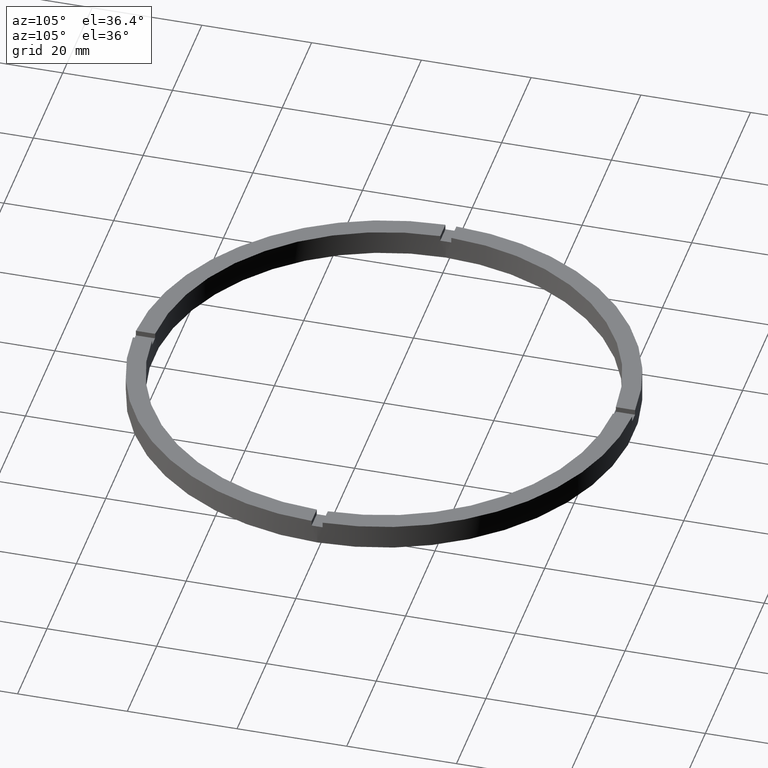
[diagram: clean part render]
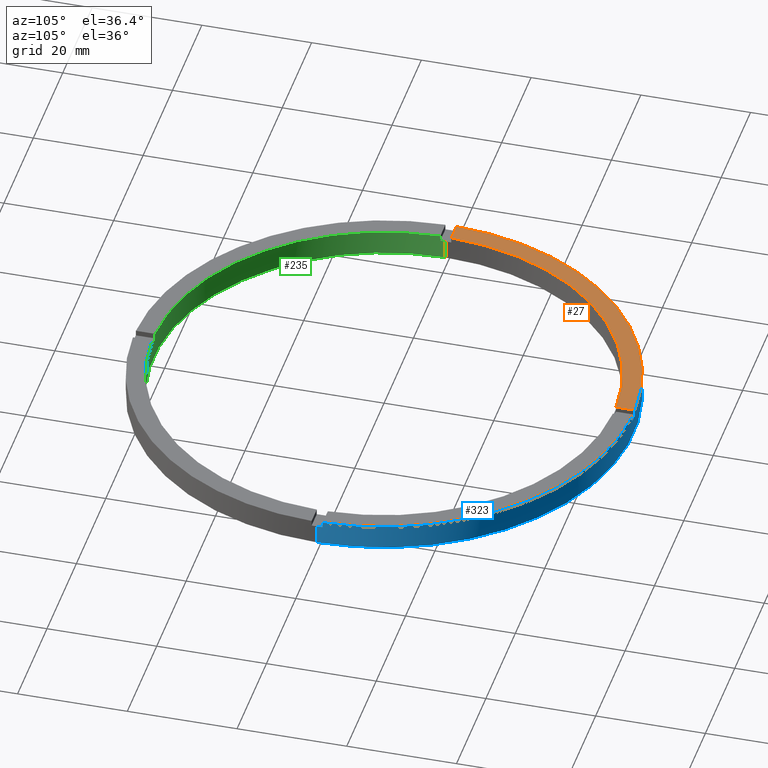
[diagram: same view with three faces highlighted in distinct colors, each labeled with its STEP entity id]
A machine part, auxiliary view with three faces highlighted in distinct colors.
Their STEP definitions:

[orange] entity #27 — the highlighted planar face has unit normal (0, 0, 1).
#16 = AXIS2_PLACEMENT_3D ( 'NONE', #625, #29, #82 ) ;
#27 = ADVANCED_FACE ( 'NONE', ( #358 ), #107, .T. ) ;
#29 = DIRECTION ( 'NONE',  ( 0.000000000000000000, 0.000000000000000000, 1.000000000000000000 ) ) ;
#66 = VERTEX_POINT ( 'NONE', #253 ) ;
#72 = EDGE_CURVE ( 'NONE', #453, #444, #346, .T. ) ;
#77 = DIRECTION ( 'NONE',  ( -1.000000000000000000, -2.168404344971008621E-16, 0.000000000000000000 ) ) ;
#82 = DIRECTION ( 'NONE',  ( 1.000000000000000000, 0.000000000000000000, 0.000000000000000000 ) ) ;
#88 = EDGE_CURVE ( 'NONE', #365, #453, #619, .T. ) ;
#107 = PLANE ( 'NONE',  #596 ) ;
#133 = ORIENTED_EDGE ( 'NONE', *, *, #576, .T. ) ;
#143 = CARTESIAN_POINT ( 'NONE',  ( -45.48900966167541782, 0.9999999999999701350, 4.500000000000000000 ) ) ;
#157 = CARTESIAN_POINT ( 'NONE',  ( 0.000000000000000000, 0.000000000000000000, 4.500000000000000000 ) ) ;
#159 = CARTESIAN_POINT ( 'NONE',  ( 0.000000000000000000, 0.000000000000000000, 4.500000000000000000 ) ) ;
#178 = VECTOR ( 'NONE', #366, 1000.000000000000000 ) ;
#183 = LINE ( 'NONE', #312, #178 ) ;
#188 = ORIENTED_EDGE ( 'NONE', *, *, #88, .F. ) ;
#253 = CARTESIAN_POINT ( 'NONE',  ( -1.000000000000026201, 45.48900966167541782, 4.500000000000000000 ) ) ;
#310 = CARTESIAN_POINT ( 'NONE',  ( -35.50000000000018474, 0.9999999999999720224, 4.500000000000000000 ) ) ;
#312 = CARTESIAN_POINT ( 'NONE',  ( -1.000000000000026201, 35.50000000000000000, 4.500000000000000000 ) ) ;
#314 = DIRECTION ( 'NONE',  ( 1.000000000000000000, 0.000000000000000000, -0.000000000000000000 ) ) ;
#334 = CARTESIAN_POINT ( 'NONE',  ( -41.98809355043403713, 0.9999999999999708011, 4.500000000000000000 ) ) ;
#346 = LINE ( 'NONE', #310, #637 ) ;
#358 = FACE_OUTER_BOUND ( 'NONE', #451, .T. ) ;
#365 = VERTEX_POINT ( 'NONE', #651 ) ;
#366 = DIRECTION ( 'NONE',  ( -0.000000000000000000, -1.000000000000000000, -0.000000000000000000 ) ) ;
#371 = ORIENTED_EDGE ( 'NONE', *, *, #541, .F. ) ;
#444 = VERTEX_POINT ( 'NONE', #143 ) ;
#451 = EDGE_LOOP ( 'NONE', ( #371, #133, #654, #188 ) ) ;
#453 = VERTEX_POINT ( 'NONE', #334 ) ;
#541 = EDGE_CURVE ( 'NONE', #66, #365, #183, .T. ) ;
#552 = DIRECTION ( 'NONE',  ( 1.000000000000000000, 0.000000000000000000, 0.000000000000000000 ) ) ;
#563 = AXIS2_PLACEMENT_3D ( 'NONE', #157, #610, #552 ) ;
#576 = EDGE_CURVE ( 'NONE', #66, #444, #714, .T. ) ;
#596 = AXIS2_PLACEMENT_3D ( 'NONE', #159, #763, #314 ) ;
#610 = DIRECTION ( 'NONE',  ( 0.000000000000000000, 0.000000000000000000, 1.000000000000000000 ) ) ;
#619 = CIRCLE ( 'NONE', #16, 42.00000000000000000 ) ;
#625 = CARTESIAN_POINT ( 'NONE',  ( 0.000000000000000000, 0.000000000000000000, 4.500000000000000000 ) ) ;
#637 = VECTOR ( 'NONE', #77, 1000.000000000000000 ) ;
#651 = CARTESIAN_POINT ( 'NONE',  ( -1.000000000000026201, 41.98809355043403713, 4.500000000000000000 ) ) ;
#654 = ORIENTED_EDGE ( 'NONE', *, *, #72, .F. ) ;
#714 = CIRCLE ( 'NONE', #563, 45.50000000000000000 ) ;
#763 = DIRECTION ( 'NONE',  ( 0.000000000000000000, 0.000000000000000000, 1.000000000000000000 ) ) ;

[blue] entity #323 — the highlighted cylindrical surface (partial cylindrical patch) has radius 45.5 mm, axis along (-0, -0, -1).
#1 = CYLINDRICAL_SURFACE ( 'NONE', #613, 45.50000000000000000 ) ;
#2 = LINE ( 'NONE', #631, #255 ) ;
#4 = LINE ( 'NONE', #275, #259 ) ;
#33 = EDGE_CURVE ( 'NONE', #454, #180, #85, .T. ) ;
#36 = EDGE_CURVE ( 'NONE', #118, #180, #359, .T. ) ;
#51 = CARTESIAN_POINT ( 'NONE',  ( 0.9999999999999737987, 45.48900966167541782, 4.500000000000000000 ) ) ;
#53 = CARTESIAN_POINT ( 'NONE',  ( 45.48900966167542492, 0.9999999999998439026, 4.500000000000000000 ) ) ;
#60 = AXIS2_PLACEMENT_3D ( 'NONE', #572, #130, #618 ) ;
#66 = VERTEX_POINT ( 'NONE', #253 ) ;
#78 = CARTESIAN_POINT ( 'NONE',  ( -45.50000000000000000, 0.000000000000000000, 0.000000000000000000 ) ) ;
#85 = LINE ( 'NONE', #569, #104 ) ;
#100 = DIRECTION ( 'NONE',  ( 1.000000000000000000, 0.000000000000000000, 0.000000000000000000 ) ) ;
#103 = EDGE_CURVE ( 'NONE', #739, #595, #638, .T. ) ;
#104 = VECTOR ( 'NONE', #247, 1000.000000000000000 ) ;
#118 = VERTEX_POINT ( 'NONE', #53 ) ;
#120 = ORIENTED_EDGE ( 'NONE', *, *, #324, .T. ) ;
#123 = ORIENTED_EDGE ( 'NONE', *, *, #603, .F. ) ;
#126 = CARTESIAN_POINT ( 'NONE',  ( -1.000000000000026201, 45.48900966167541782, 3.499999999999999556 ) ) ;
#128 = CARTESIAN_POINT ( 'NONE',  ( 45.50000000000000000, 5.572142936120457130E-15, 3.499999999999999556 ) ) ;
#130 = DIRECTION ( 'NONE',  ( 0.000000000000000000, 0.000000000000000000, 1.000000000000000000 ) ) ;
#136 = AXIS2_PLACEMENT_3D ( 'NONE', #670, #750, #409 ) ;
#143 = CARTESIAN_POINT ( 'NONE',  ( -45.48900966167541782, 0.9999999999999701350, 4.500000000000000000 ) ) ;
#157 = CARTESIAN_POINT ( 'NONE',  ( 0.000000000000000000, 0.000000000000000000, 4.500000000000000000 ) ) ;
#158 = DIRECTION ( 'NONE',  ( -0.000000000000000000, -0.000000000000000000, -1.000000000000000000 ) ) ;
#180 = VERTEX_POINT ( 'NONE', #51 ) ;
#186 = ORIENTED_EDGE ( 'NONE', *, *, #576, .F. ) ;
#202 = CARTESIAN_POINT ( 'NONE',  ( 0.000000000000000000, 0.000000000000000000, 4.500000000000000000 ) ) ;
#207 = DIRECTION ( 'NONE',  ( 1.000000000000000000, 0.000000000000000000, 0.000000000000000000 ) ) ;
#208 = VERTEX_POINT ( 'NONE', #325 ) ;
#218 = EDGE_CURVE ( 'NONE', #667, #729, #4, .T. ) ;
#227 = AXIS2_PLACEMENT_3D ( 'NONE', #281, #584, #100 ) ;
#240 = VECTOR ( 'NONE', #158, 1000.000000000000000 ) ;
#241 = CARTESIAN_POINT ( 'NONE',  ( 45.48900966167542492, 0.9999999999998439026, 3.499999999999999556 ) ) ;
#247 = DIRECTION ( 'NONE',  ( 0.000000000000000000, 0.000000000000000000, 1.000000000000000000 ) ) ;
#248 = CARTESIAN_POINT ( 'NONE',  ( -45.50000000000000000, 0.000000000000000000, 3.499999999999999556 ) ) ;
#252 = LINE ( 'NONE', #773, #772 ) ;
#253 = CARTESIAN_POINT ( 'NONE',  ( -1.000000000000026201, 45.48900966167541782, 4.500000000000000000 ) ) ;
#255 = VECTOR ( 'NONE', #279, 1000.000000000000000 ) ;
#259 = VECTOR ( 'NONE', #376, 1000.000000000000000 ) ;
#272 = CARTESIAN_POINT ( 'NONE',  ( -45.48900966167541782, 0.9999999999999701350, 4.500000000000000000 ) ) ;
#275 = CARTESIAN_POINT ( 'NONE',  ( -45.50000000000000000, 0.000000000000000000, 4.500000000000000000 ) ) ;
#279 = DIRECTION ( 'NONE',  ( -0.000000000000000000, -0.000000000000000000, -1.000000000000000000 ) ) ;
#281 = CARTESIAN_POINT ( 'NONE',  ( 0.000000000000000000, 0.000000000000000000, 3.499999999999999556 ) ) ;
#283 = EDGE_CURVE ( 'NONE', #66, #688, #776, .T. ) ;
#291 = AXIS2_PLACEMENT_3D ( 'NONE', #379, #635, #691 ) ;
#303 = CARTESIAN_POINT ( 'NONE',  ( 45.50000000000000000, 5.572142936120457130E-15, 0.000000000000000000 ) ) ;
#323 = ADVANCED_FACE ( 'NONE', ( #523 ), #1, .T. ) ;
#324 = EDGE_CURVE ( 'NONE', #208, #444, #506, .T. ) ;
#325 = CARTESIAN_POINT ( 'NONE',  ( -45.48900966167541782, 0.9999999999999701350, 3.499999999999999556 ) ) ;
#330 = DIRECTION ( 'NONE',  ( -0.000000000000000000, -0.000000000000000000, -1.000000000000000000 ) ) ;
#333 = EDGE_CURVE ( 'NONE', #454, #688, #504, .T. ) ;
#340 = EDGE_CURVE ( 'NONE', #739, #736, #252, .T. ) ;
#359 = CIRCLE ( 'NONE', #136, 45.50000000000000000 ) ;
#364 = AXIS2_PLACEMENT_3D ( 'NONE', #449, #766, #207 ) ;
#374 = ORIENTED_EDGE ( 'NONE', *, *, #333, .F. ) ;
#376 = DIRECTION ( 'NONE',  ( -0.000000000000000000, -0.000000000000000000, -1.000000000000000000 ) ) ;
#377 = ORIENTED_EDGE ( 'NONE', *, *, #418, .T. ) ;
#379 = CARTESIAN_POINT ( 'NONE',  ( 0.000000000000000000, 0.000000000000000000, 3.499999999999999556 ) ) ;
#386 = CARTESIAN_POINT ( 'NONE',  ( 0.9999999999999737987, 45.48900966167541782, 3.499999999999999556 ) ) ;
#404 = CARTESIAN_POINT ( 'NONE',  ( -1.000000000000026201, 45.48900966167541782, 4.500000000000000000 ) ) ;
#409 = DIRECTION ( 'NONE',  ( 1.000000000000000000, 0.000000000000000000, 0.000000000000000000 ) ) ;
#416 = EDGE_CURVE ( 'NONE', #736, #729, #527, .T. ) ;
#418 = EDGE_CURVE ( 'NONE', #118, #595, #2, .T. ) ;
#436 = DIRECTION ( 'NONE',  ( -0.000000000000000000, -0.000000000000000000, -1.000000000000000000 ) ) ;
#440 = EDGE_LOOP ( 'NONE', ( #447, #722, #458, #475, #123, #120, #186, #717, #374, #743, #460, #377 ) ) ;
#444 = VERTEX_POINT ( 'NONE', #143 ) ;
#447 = ORIENTED_EDGE ( 'NONE', *, *, #103, .F. ) ;
#449 = CARTESIAN_POINT ( 'NONE',  ( 0.000000000000000000, 0.000000000000000000, 0.000000000000000000 ) ) ;
#454 = VERTEX_POINT ( 'NONE', #386 ) ;
#458 = ORIENTED_EDGE ( 'NONE', *, *, #416, .T. ) ;
#460 = ORIENTED_EDGE ( 'NONE', *, *, #36, .F. ) ;
#475 = ORIENTED_EDGE ( 'NONE', *, *, #218, .F. ) ;
#504 = CIRCLE ( 'NONE', #291, 45.50000000000000000 ) ;
#506 = LINE ( 'NONE', #272, #513 ) ;
#513 = VECTOR ( 'NONE', #585, 1000.000000000000000 ) ;
#523 = FACE_OUTER_BOUND ( 'NONE', #440, .T. ) ;
#527 = CIRCLE ( 'NONE', #364, 45.50000000000000000 ) ;
#552 = DIRECTION ( 'NONE',  ( 1.000000000000000000, 0.000000000000000000, 0.000000000000000000 ) ) ;
#563 = AXIS2_PLACEMENT_3D ( 'NONE', #157, #610, #552 ) ;
#569 = CARTESIAN_POINT ( 'NONE',  ( 0.9999999999999737987, 45.48900966167541782, 4.500000000000000000 ) ) ;
#572 = CARTESIAN_POINT ( 'NONE',  ( 0.000000000000000000, 0.000000000000000000, 3.499999999999999556 ) ) ;
#576 = EDGE_CURVE ( 'NONE', #66, #444, #714, .T. ) ;
#578 = DIRECTION ( 'NONE',  ( -1.000000000000000000, 0.000000000000000000, 0.000000000000000000 ) ) ;
#584 = DIRECTION ( 'NONE',  ( 0.000000000000000000, 0.000000000000000000, 1.000000000000000000 ) ) ;
#585 = DIRECTION ( 'NONE',  ( 0.000000000000000000, 0.000000000000000000, 1.000000000000000000 ) ) ;
#595 = VERTEX_POINT ( 'NONE', #241 ) ;
#603 = EDGE_CURVE ( 'NONE', #208, #667, #704, .T. ) ;
#610 = DIRECTION ( 'NONE',  ( 0.000000000000000000, 0.000000000000000000, 1.000000000000000000 ) ) ;
#613 = AXIS2_PLACEMENT_3D ( 'NONE', #202, #436, #578 ) ;
#618 = DIRECTION ( 'NONE',  ( 1.000000000000000000, 0.000000000000000000, 0.000000000000000000 ) ) ;
#631 = CARTESIAN_POINT ( 'NONE',  ( 45.48900966167542492, 0.9999999999998439026, 4.500000000000000000 ) ) ;
#635 = DIRECTION ( 'NONE',  ( 0.000000000000000000, -0.000000000000000000, 1.000000000000000000 ) ) ;
#638 = CIRCLE ( 'NONE', #227, 45.50000000000000000 ) ;
#667 = VERTEX_POINT ( 'NONE', #248 ) ;
#670 = CARTESIAN_POINT ( 'NONE',  ( 0.000000000000000000, 0.000000000000000000, 4.500000000000000000 ) ) ;
#688 = VERTEX_POINT ( 'NONE', #126 ) ;
#691 = DIRECTION ( 'NONE',  ( 1.000000000000000000, 0.000000000000000000, 0.000000000000000000 ) ) ;
#704 = CIRCLE ( 'NONE', #60, 45.50000000000000000 ) ;
#714 = CIRCLE ( 'NONE', #563, 45.50000000000000000 ) ;
#717 = ORIENTED_EDGE ( 'NONE', *, *, #283, .T. ) ;
#722 = ORIENTED_EDGE ( 'NONE', *, *, #340, .T. ) ;
#729 = VERTEX_POINT ( 'NONE', #78 ) ;
#736 = VERTEX_POINT ( 'NONE', #303 ) ;
#739 = VERTEX_POINT ( 'NONE', #128 ) ;
#743 = ORIENTED_EDGE ( 'NONE', *, *, #33, .T. ) ;
#750 = DIRECTION ( 'NONE',  ( 0.000000000000000000, 0.000000000000000000, 1.000000000000000000 ) ) ;
#766 = DIRECTION ( 'NONE',  ( 0.000000000000000000, 0.000000000000000000, 1.000000000000000000 ) ) ;
#772 = VECTOR ( 'NONE', #330, 1000.000000000000000 ) ;
#773 = CARTESIAN_POINT ( 'NONE',  ( 45.50000000000000000, 5.572142936120457130E-15, 4.500000000000000000 ) ) ;
#776 = LINE ( 'NONE', #404, #240 ) ;

[green] entity #235 — the highlighted cylindrical surface (partial cylindrical patch) has radius 42 mm, axis along (-0, -0, -1).
#6 = CARTESIAN_POINT ( 'NONE',  ( 0.000000000000000000, 0.000000000000000000, 3.499999999999999556 ) ) ;
#20 = DIRECTION ( 'NONE',  ( -0.000000000000000000, -0.000000000000000000, -1.000000000000000000 ) ) ;
#44 = DIRECTION ( 'NONE',  ( -0.000000000000000000, -0.000000000000000000, -1.000000000000000000 ) ) ;
#48 = EDGE_CURVE ( 'NONE', #200, #650, #355, .T. ) ;
#56 = CARTESIAN_POINT ( 'NONE',  ( 0.000000000000000000, 0.000000000000000000, 3.499999999999999556 ) ) ;
#59 = AXIS2_PLACEMENT_3D ( 'NONE', #6, #162, #551 ) ;
#63 = CARTESIAN_POINT ( 'NONE',  ( 0.000000000000000000, 0.000000000000000000, 4.500000000000000000 ) ) ;
#64 = DIRECTION ( 'NONE',  ( 1.000000000000000000, 0.000000000000000000, 0.000000000000000000 ) ) ;
#75 = EDGE_CURVE ( 'NONE', #438, #170, #617, .T. ) ;
#83 = CARTESIAN_POINT ( 'NONE',  ( -42.00000000000000000, 0.000000000000000000, 4.500000000000000000 ) ) ;
#84 = VERTEX_POINT ( 'NONE', #574 ) ;
#89 = VECTOR ( 'NONE', #425, 1000.000000000000000 ) ;
#114 = DIRECTION ( 'NONE',  ( 1.000000000000000000, 0.000000000000000000, 0.000000000000000000 ) ) ;
#117 = AXIS2_PLACEMENT_3D ( 'NONE', #154, #331, #64 ) ;
#122 = DIRECTION ( 'NONE',  ( 1.000000000000000000, 0.000000000000000000, 0.000000000000000000 ) ) ;
#139 = AXIS2_PLACEMENT_3D ( 'NONE', #238, #497, #298 ) ;
#154 = CARTESIAN_POINT ( 'NONE',  ( 0.000000000000000000, 0.000000000000000000, 0.000000000000000000 ) ) ;
#162 = DIRECTION ( 'NONE',  ( -0.000000000000000000, 0.000000000000000000, 1.000000000000000000 ) ) ;
#163 = CIRCLE ( 'NONE', #117, 42.00000000000000000 ) ;
#166 = LINE ( 'NONE', #565, #430 ) ;
#170 = VERTEX_POINT ( 'NONE', #401 ) ;
#173 = VECTOR ( 'NONE', #721, 1000.000000000000000 ) ;
#184 = VERTEX_POINT ( 'NONE', #290 ) ;
#187 = ORIENTED_EDGE ( 'NONE', *, *, #747, .T. ) ;
#191 = LINE ( 'NONE', #394, #723 ) ;
#193 = VERTEX_POINT ( 'NONE', #481 ) ;
#195 = LINE ( 'NONE', #83, #173 ) ;
#200 = VERTEX_POINT ( 'NONE', #656 ) ;
#223 = VERTEX_POINT ( 'NONE', #441 ) ;
#228 = VECTOR ( 'NONE', #44, 1000.000000000000000 ) ;
#235 = ADVANCED_FACE ( 'NONE', ( #538 ), #774, .F. ) ;
#237 = CIRCLE ( 'NONE', #59, 42.00000000000000000 ) ;
#238 = CARTESIAN_POINT ( 'NONE',  ( 0.000000000000000000, 0.000000000000000000, 3.499999999999999556 ) ) ;
#242 = CIRCLE ( 'NONE', #300, 42.00000000000000000 ) ;
#244 = CARTESIAN_POINT ( 'NONE',  ( 0.9999999999998416822, -41.98809355043403713, 3.499999999999999556 ) ) ;
#251 = EDGE_CURVE ( 'NONE', #84, #738, #237, .T. ) ;
#261 = CARTESIAN_POINT ( 'NONE',  ( 41.98809355043403002, -1.000000000000156319, 4.500000000000000000 ) ) ;
#262 = CARTESIAN_POINT ( 'NONE',  ( 42.00000000000000000, 5.143516556418883322E-15, 0.000000000000000000 ) ) ;
#290 = CARTESIAN_POINT ( 'NONE',  ( -41.98809355043403713, -1.000000000000029310, 3.499999999999999556 ) ) ;
#298 = DIRECTION ( 'NONE',  ( 1.000000000000000000, 0.000000000000000000, 0.000000000000000000 ) ) ;
#300 = AXIS2_PLACEMENT_3D ( 'NONE', #56, #465, #645 ) ;
#307 = CIRCLE ( 'NONE', #139, 42.00000000000000000 ) ;
#331 = DIRECTION ( 'NONE',  ( 0.000000000000000000, 0.000000000000000000, 1.000000000000000000 ) ) ;
#341 = EDGE_CURVE ( 'NONE', #480, #738, #780, .T. ) ;
#350 = EDGE_CURVE ( 'NONE', #644, #184, #242, .T. ) ;
#353 = CARTESIAN_POINT ( 'NONE',  ( -41.98809355043403713, -1.000000000000029310, 4.500000000000000000 ) ) ;
#355 = CIRCLE ( 'NONE', #652, 42.00000000000000000 ) ;
#367 = ORIENTED_EDGE ( 'NONE', *, *, #657, .F. ) ;
#370 = ORIENTED_EDGE ( 'NONE', *, *, #341, .F. ) ;
#387 = CARTESIAN_POINT ( 'NONE',  ( 0.9999999999998416822, -41.98809355043403713, 4.500000000000000000 ) ) ;
#394 = CARTESIAN_POINT ( 'NONE',  ( 42.00000000000000000, 5.143516556418883322E-15, 4.500000000000000000 ) ) ;
#401 = CARTESIAN_POINT ( 'NONE',  ( 41.98809355043403002, -1.000000000000156319, 4.500000000000000000 ) ) ;
#417 = ORIENTED_EDGE ( 'NONE', *, *, #575, .F. ) ;
#420 = CARTESIAN_POINT ( 'NONE',  ( -42.00000000000000000, 0.000000000000000000, 3.499999999999999556 ) ) ;
#425 = DIRECTION ( 'NONE',  ( 0.000000000000000000, 0.000000000000000000, 1.000000000000000000 ) ) ;
#426 = LINE ( 'NONE', #353, #697 ) ;
#430 = VECTOR ( 'NONE', #616, 1000.000000000000000 ) ;
#432 = CIRCLE ( 'NONE', #687, 42.00000000000000000 ) ;
#438 = VERTEX_POINT ( 'NONE', #591 ) ;
#441 = CARTESIAN_POINT ( 'NONE',  ( -42.00000000000000000, 0.000000000000000000, 0.000000000000000000 ) ) ;
#442 = ORIENTED_EDGE ( 'NONE', *, *, #350, .T. ) ;
#446 = EDGE_LOOP ( 'NONE', ( #187, #740, #653, #417, #442, #367, #467, #733, #647, #370, #713, #649 ) ) ;
#465 = DIRECTION ( 'NONE',  ( 0.000000000000000000, 0.000000000000000000, 1.000000000000000000 ) ) ;
#467 = ORIENTED_EDGE ( 'NONE', *, *, #48, .T. ) ;
#469 = DIRECTION ( 'NONE',  ( -0.000000000000000000, -0.000000000000000000, -1.000000000000000000 ) ) ;
#480 = VERTEX_POINT ( 'NONE', #387 ) ;
#481 = CARTESIAN_POINT ( 'NONE',  ( 42.00000000000000000, 5.143516556418883322E-15, 3.499999999999999556 ) ) ;
#495 = DIRECTION ( 'NONE',  ( 0.000000000000000000, 0.000000000000000000, 1.000000000000000000 ) ) ;
#497 = DIRECTION ( 'NONE',  ( 0.000000000000000000, 0.000000000000000000, 1.000000000000000000 ) ) ;
#498 = DIRECTION ( 'NONE',  ( -1.000000000000000000, 0.000000000000000000, 0.000000000000000000 ) ) ;
#519 = CARTESIAN_POINT ( 'NONE',  ( 0.000000000000000000, 0.000000000000000000, 4.500000000000000000 ) ) ;
#526 = EDGE_CURVE ( 'NONE', #193, #708, #191, .T. ) ;
#538 = FACE_OUTER_BOUND ( 'NONE', #446, .T. ) ;
#551 = DIRECTION ( 'NONE',  ( 1.000000000000000000, 0.000000000000000000, 0.000000000000000000 ) ) ;
#558 = CARTESIAN_POINT ( 'NONE',  ( 0.000000000000000000, 0.000000000000000000, 4.500000000000000000 ) ) ;
#565 = CARTESIAN_POINT ( 'NONE',  ( -1.000000000000158318, -41.98809355043403002, 4.500000000000000000 ) ) ;
#574 = CARTESIAN_POINT ( 'NONE',  ( -1.000000000000158318, -41.98809355043403002, 3.499999999999999556 ) ) ;
#575 = EDGE_CURVE ( 'NONE', #644, #223, #195, .T. ) ;
#591 = CARTESIAN_POINT ( 'NONE',  ( 41.98809355043403002, -1.000000000000156319, 3.499999999999999556 ) ) ;
#611 = CARTESIAN_POINT ( 'NONE',  ( -1.000000000000158318, -41.98809355043403002, 4.500000000000000000 ) ) ;
#616 = DIRECTION ( 'NONE',  ( 0.000000000000000000, 0.000000000000000000, 1.000000000000000000 ) ) ;
#617 = LINE ( 'NONE', #261, #89 ) ;
#622 = CARTESIAN_POINT ( 'NONE',  ( 0.9999999999998416822, -41.98809355043403713, 4.500000000000000000 ) ) ;
#640 = EDGE_CURVE ( 'NONE', #223, #708, #163, .T. ) ;
#644 = VERTEX_POINT ( 'NONE', #420 ) ;
#645 = DIRECTION ( 'NONE',  ( 1.000000000000000000, 0.000000000000000000, 0.000000000000000000 ) ) ;
#647 = ORIENTED_EDGE ( 'NONE', *, *, #251, .T. ) ;
#649 = ORIENTED_EDGE ( 'NONE', *, *, #75, .F. ) ;
#650 = VERTEX_POINT ( 'NONE', #611 ) ;
#652 = AXIS2_PLACEMENT_3D ( 'NONE', #558, #495, #114 ) ;
#653 = ORIENTED_EDGE ( 'NONE', *, *, #640, .F. ) ;
#656 = CARTESIAN_POINT ( 'NONE',  ( -41.98809355043403713, -1.000000000000029310, 4.500000000000000000 ) ) ;
#657 = EDGE_CURVE ( 'NONE', #200, #184, #426, .T. ) ;
#659 = DIRECTION ( 'NONE',  ( -0.000000000000000000, -0.000000000000000000, -1.000000000000000000 ) ) ;
#664 = EDGE_CURVE ( 'NONE', #84, #650, #166, .T. ) ;
#675 = EDGE_CURVE ( 'NONE', #480, #170, #432, .T. ) ;
#687 = AXIS2_PLACEMENT_3D ( 'NONE', #63, #724, #122 ) ;
#697 = VECTOR ( 'NONE', #20, 1000.000000000000000 ) ;
#708 = VERTEX_POINT ( 'NONE', #262 ) ;
#713 = ORIENTED_EDGE ( 'NONE', *, *, #675, .T. ) ;
#721 = DIRECTION ( 'NONE',  ( -0.000000000000000000, -0.000000000000000000, -1.000000000000000000 ) ) ;
#723 = VECTOR ( 'NONE', #469, 1000.000000000000000 ) ;
#724 = DIRECTION ( 'NONE',  ( 0.000000000000000000, 0.000000000000000000, 1.000000000000000000 ) ) ;
#733 = ORIENTED_EDGE ( 'NONE', *, *, #664, .F. ) ;
#737 = AXIS2_PLACEMENT_3D ( 'NONE', #519, #659, #498 ) ;
#738 = VERTEX_POINT ( 'NONE', #244 ) ;
#740 = ORIENTED_EDGE ( 'NONE', *, *, #526, .T. ) ;
#747 = EDGE_CURVE ( 'NONE', #438, #193, #307, .T. ) ;
#774 = CYLINDRICAL_SURFACE ( 'NONE', #737, 42.00000000000000000 ) ;
#780 = LINE ( 'NONE', #622, #228 ) ;